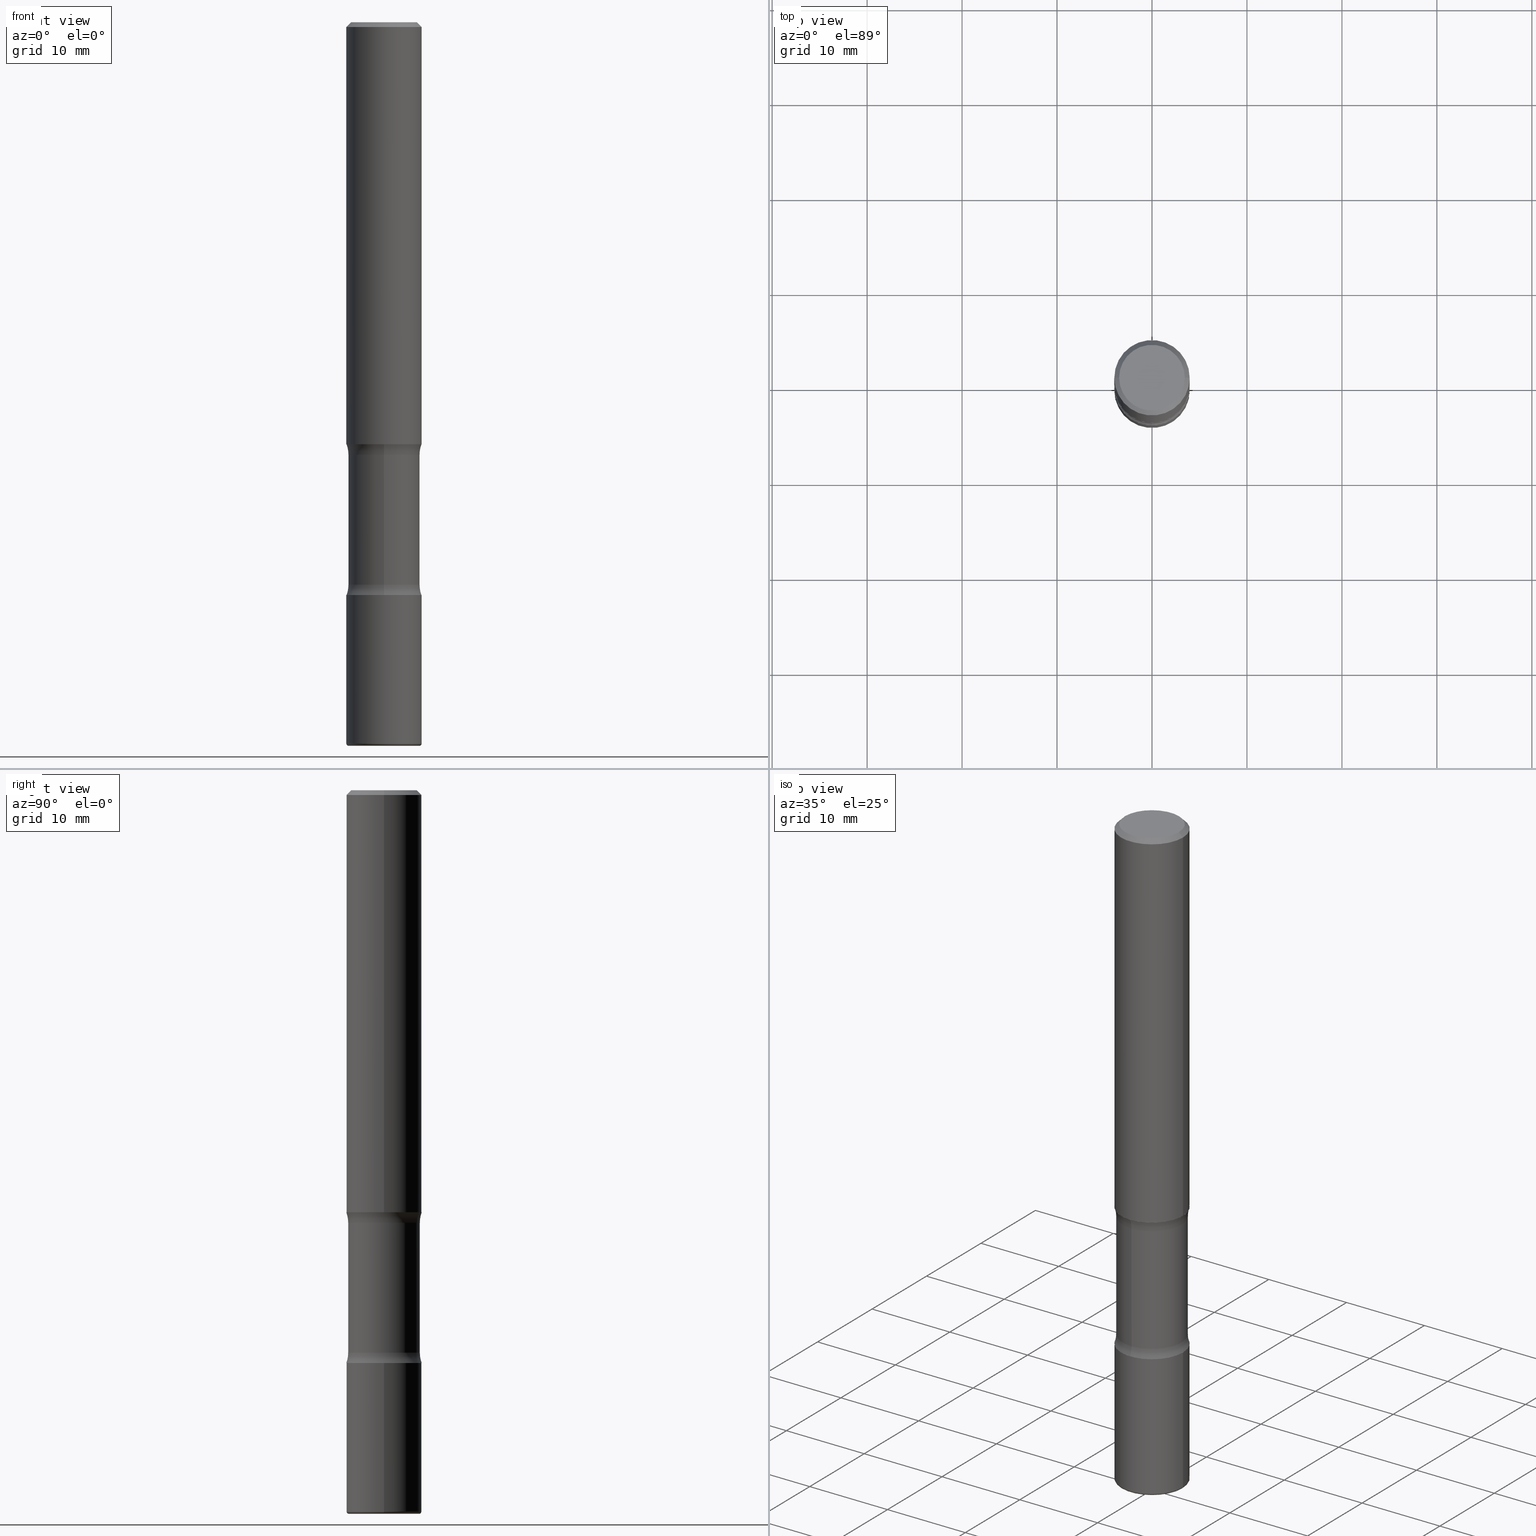
[diagram: canonical four-view strip — front | top / right | iso, engineering-drawing reading convention]
A machine part, canonical four-view strip (front | top / right | iso — engineering-drawing reading convention). The complete STEP part file that produces these views, byte-faithful:
ISO-10303-21;
HEADER;
FILE_DESCRIPTION (( 'STEP AP203' ),
    '1' );
FILE_NAME ('37810.STEP',
    '2024-03-02T00:25:51',
    ( '' ),
    ( '' ),
    'SwSTEP 2.0',
    'SolidWorks 2023',
    '' );
FILE_SCHEMA (( 'CONFIG_CONTROL_DESIGN' ));
ENDSEC;

DATA;
#1 = CALENDAR_DATE ( 2024, 1, 3 ) ;
#2 = EDGE_CURVE ( 'NONE', #271, #45, #130, .T. ) ;
#3 = AXIS2_PLACEMENT_3D ( 'NONE', #188, #324, #115 ) ;
#4 = VECTOR ( 'NONE', #364, 39.37007874015748143 ) ;
#5 = ORIENTED_EDGE ( 'NONE', *, *, #147, .F. ) ;
#6 = MECHANICAL_CONTEXT ( 'NONE', #238, 'mechanical' ) ;
#7 = VERTEX_POINT ( 'NONE', #17 ) ;
#8 = COORDINATED_UNIVERSAL_TIME_OFFSET ( 5, 0, .BEHIND. ) ;
#9 = ORIENTED_EDGE ( 'NONE', *, *, #27, .T. ) ;
#10 = DIRECTION ( 'NONE',  ( 1.000000000000000000, -6.860497997771530774E-15, 4.842174840124134267E-29 ) ) ;
#11 = DIRECTION ( 'NONE',  ( 1.000000000000000000, -6.982962677686265133E-15, 0.000000000000000000 ) ) ;
#12 = CARTESIAN_POINT ( 'NONE',  ( 0.1562500000000000833, -7.201180261363985422E-15, -1.750000000000000444 ) ) ;
#13 = CIRCLE ( 'NONE', #218, 0.1562499999999998612 ) ;
#14 = EDGE_LOOP ( 'NONE', ( #343, #549 ) ) ;
#15 = DIRECTION ( 'NONE',  ( 2.438088387897960049E-29, -3.491481338843145188E-15, -1.000000000000000000 ) ) ;
#16 = DIRECTION ( 'NONE',  ( 2.523926373086038410E-29, -3.379125637513666367E-15, -1.000000000000000000 ) ) ;
#17 = CARTESIAN_POINT ( 'NONE',  ( -0.1362499999999998712, 9.863434782231840290E-16, -6.775751096333132877E-30 ) ) ;
#18 = DATE_AND_TIME ( #138, #195 ) ;
#19 = EDGE_CURVE ( 'NONE', #59, #92, #279, .T. ) ;
#20 = DIRECTION ( 'NONE',  ( 1.000000000000000000, -6.982962677686266711E-15, 4.876176775795936353E-29 ) ) ;
#21 = CARTESIAN_POINT ( 'NONE',  ( 5.807988414689700538E-29, -8.292268179752471696E-15, -2.375000000000000444 ) ) ;
#22 = CLOSED_SHELL ( 'NONE', ( #341, #36, #55, #478, #540, #417 ) ) ;
#23 = CIRCLE ( 'NONE', #280, 0.1484375000000000000 ) ;
#24 = CARTESIAN_POINT ( 'NONE',  ( 5.698202263795362163E-29, -8.145282435205020267E-15, -2.331501840915390478 ) ) ;
#25 = CARTESIAN_POINT ( 'NONE',  ( 1.036533522469098602E-15, 0.1484374999999936995, -1.793498159084610633 ) ) ;
#26 = DIRECTION ( 'NONE',  ( 6.860497997771530774E-15, 1.000000000000000000, 0.000000000000000000 ) ) ;
#27 = EDGE_CURVE ( 'NONE', #251, #39, #267, .T. ) ;
#28 = CARTESIAN_POINT ( 'NONE',  ( -1.875917421265609774E-15, -0.2734375000000063838, -1.793498159084609522 ) ) ;
#29 = TOROIDAL_SURFACE ( 'NONE', #3, 0.2734375000000000000, 0.1250000000000000000 ) ;
#30 = CIRCLE ( 'NONE', #468, 0.1562500000000001665 ) ;
#31 = CARTESIAN_POINT ( 'NONE',  ( -0.1562499999999999722, 1.110223024625156343E-15, -7.685836078523288357E-30 ) ) ;
#32 = TOROIDAL_SURFACE ( 'NONE', #452, 0.2734375000000000555, 0.1250000000000000000 ) ;
#33 = VERTEX_POINT ( 'NONE', #64 ) ;
#34 = DIRECTION ( 'NONE',  ( -2.445468806185136597E-29, 3.491481338843145583E-15, 1.000000000000000000 ) ) ;
#35 = EDGE_LOOP ( 'NONE', ( #228, #424, #434, #518 ) ) ;
#36 = ADVANCED_FACE ( 'NONE', ( #495 ), #79, .T. ) ;
#37 = ORIENTED_EDGE ( 'NONE', *, *, #426, .T. ) ;
#38 = VECTOR ( 'NONE', #16, 39.37007874015748143 ) ;
#39 = VERTEX_POINT ( 'NONE', #25 ) ;
#40 = DIRECTION ( 'NONE',  ( 1.000000000000000000, -6.982962677686266711E-15, 4.876176775795936353E-29 ) ) ;
#41 = EDGE_LOOP ( 'NONE', ( #63, #128, #389, #103 ) ) ;
#42 = MANIFOLD_SOLID_BREP ( 'Body-Move/Copy2[2]', #316 ) ;
#43 = ADVANCED_FACE ( 'NONE', ( #191 ), #197, .F. ) ;
#44 = CC_DESIGN_DATE_AND_TIME_ASSIGNMENT ( #253, #126, ( #557 ) ) ;
#45 = VERTEX_POINT ( 'NONE', #153 ) ;
#46 = MANIFOLD_SOLID_BREP ( 'Body-Move/Copy2[4]', #427 ) ;
#47 = APPLICATION_PROTOCOL_DEFINITION ( 'international standard', 'config_control_design', 1994, #238 ) ;
#48 = AXIS2_PLACEMENT_3D ( 'NONE', #21, #320, #367 ) ;
#49 = CIRCLE ( 'NONE', #270, 0.1562499999999998612 ) ;
#50 = ORIENTED_EDGE ( 'NONE', *, *, #127, .F. ) ;
#51 = CIRCLE ( 'NONE', #142, 0.1462500000000001021 ) ;
#52 = APPROVAL_DATE_TIME ( #18, #508 ) ;
#53 = ORIENTED_EDGE ( 'NONE', *, *, #224, .F. ) ;
#54 = CARTESIAN_POINT ( 'NONE',  ( 5.701615023521807970E-29, -8.140395169034527718E-15, -2.331501840915390478 ) ) ;
#55 = ADVANCED_FACE ( 'NONE', ( #240 ), #229, .T. ) ;
#56 = CARTESIAN_POINT ( 'NONE',  ( 4.279570410823989605E-29, -6.110092342975506249E-15, -1.750000000000000444 ) ) ;
#57 = PERSON_AND_ORGANIZATION_ROLE ( 'design_supplier' ) ;
#58 = PLANE ( 'NONE',  #499 ) ;
#59 = VERTEX_POINT ( 'NONE', #60 ) ;
#60 = CARTESIAN_POINT ( 'NONE',  ( -0.1562500000000000833, -1.979737960251025472E-15, -1.750000000000000444 ) ) ;
#61 = CIRCLE ( 'NONE', #252, 0.01000000000000013205 ) ;
#62 = CARTESIAN_POINT ( 'NONE',  ( -1.875917421265595575E-15, -0.2734375000000081046, -2.331501840915390034 ) ) ;
#63 = ORIENTED_EDGE ( 'NONE', *, *, #244, .F. ) ;
#64 = CARTESIAN_POINT ( 'NONE',  ( 0.1362499999999998712, -1.038262645562517138E-15, 6.957025900226689470E-30 ) ) ;
#65 = ADVANCED_FACE ( 'NONE', ( #408 ), #344, .T. ) ;
#66 = APPROVAL_DATE_TIME ( #455, #546 ) ;
#67 = DIRECTION ( 'NONE',  ( -2.445468806185136597E-29, 3.491481338843145583E-15, 1.000000000000000000 ) ) ;
#68 = DIRECTION ( 'NONE',  ( 1.000000000000000000, -6.982962677686270655E-15, 0.000000000000000000 ) ) ;
#69 = DIRECTION ( 'NONE',  ( 6.982962677686265133E-15, 1.000000000000000000, -3.680805717779217644E-15 ) ) ;
#70 = CARTESIAN_POINT ( 'NONE',  ( 0.000000000000000000, 0.000000000000000000, 0.000000000000000000 ) ) ;
#71 = AXIS2_PLACEMENT_3D ( 'NONE', #371, #361, #311 ) ;
#72 = AXIS2_PLACEMENT_3D ( 'NONE', #376, #278, #161 ) ;
#73 = DIRECTION ( 'NONE',  ( -1.000000000000000000, 7.105427357601027102E-15, 0.000000000000000000 ) ) ;
#74 = DIRECTION ( 'NONE',  ( 1.000000000000000000, -6.982962677686265133E-15, 0.000000000000000000 ) ) ;
#75 = CYLINDRICAL_SURFACE ( 'NONE', #246, 0.1484375000000000000 ) ;
#76 = EDGE_LOOP ( 'NONE', ( #5, #349 ) ) ;
#77 = DIRECTION ( 'NONE',  ( 6.982962677686265133E-15, 1.000000000000000000, -3.680805717779216855E-15 ) ) ;
#78 = PRODUCT ( '37810', '37810', '', ( #6 ) ) ;
#79 = TOROIDAL_SURFACE ( 'NONE', #171, 0.1462500000000000744, 0.01000000000000011470 ) ;
#80 = AXIS2_PLACEMENT_3D ( 'NONE', #410, #369, #102 ) ;
#81 = DIRECTION ( 'NONE',  ( -2.445468806185136597E-29, 3.491481338843145583E-15, 1.000000000000000000 ) ) ;
#82 = EDGE_CURVE ( 'NONE', #92, #59, #368, .T. ) ;
#83 = FACE_OUTER_BOUND ( 'NONE', #222, .T. ) ;
#84 = DIRECTION ( 'NONE',  ( 6.982962677686265922E-15, 1.000000000000000000, -3.379125637513666761E-15 ) ) ;
#85 = DIRECTION ( 'NONE',  ( 2.438088387897960049E-29, -3.491481338843145188E-15, -1.000000000000000000 ) ) ;
#86 = CIRCLE ( 'NONE', #400, 0.1250000000000000000 ) ;
#87 = EDGE_CURVE ( 'NONE', #300, #261, #437, .T. ) ;
#88 = CC_DESIGN_APPROVAL ( #508, ( #515 ) ) ;
#89 = CC_DESIGN_DATE_AND_TIME_ASSIGNMENT ( #521, #491, ( #515 ) ) ;
#90 = ORIENTED_EDGE ( 'NONE', *, *, #163, .F. ) ;
#91 =( NAMED_UNIT ( * ) PLANE_ANGLE_UNIT ( ) SI_UNIT ( $, .RADIAN. ) );
#92 = VERTEX_POINT ( 'NONE', #12 ) ;
#93 = DATE_AND_TIME ( #1, #500 ) ;
#94 = ORIENTED_EDGE ( 'NONE', *, *, #158, .T. ) ;
#95 = PERSON_AND_ORGANIZATION ( #432, #538 ) ;
#96 = CIRCLE ( 'NONE', #71, 0.1562500000000001110 ) ;
#97 = CONICAL_SURFACE ( 'NONE', #80, 0.1562499999999998612, 0.7853981633974480570 ) ;
#98 = VERTEX_POINT ( 'NONE', #157 ) ;
#99 = CC_DESIGN_PERSON_AND_ORGANIZATION_ASSIGNMENT ( #338, #214, ( #78 ) ) ;
#100 = DIRECTION ( 'NONE',  ( -2.445468806185136597E-29, 3.491481338843145583E-15, 1.000000000000000000 ) ) ;
#101 = ORIENTED_EDGE ( 'NONE', *, *, #236, .T. ) ;
#102 = DIRECTION ( 'NONE',  ( -1.000000000000000000, 6.982962677686266711E-15, 0.000000000000000000 ) ) ;
#103 = ORIENTED_EDGE ( 'NONE', *, *, #175, .T. ) ;
#104 = DIRECTION ( 'NONE',  ( -6.982962677686266711E-15, -1.000000000000000000, 3.491481338843145583E-15 ) ) ;
#105 = FACE_OUTER_BOUND ( 'NONE', #41, .T. ) ;
#106 = ADVANCED_FACE ( 'NONE', ( #457 ), #29, .F. ) ;
#107 = ORIENTED_EDGE ( 'NONE', *, *, #158, .F. ) ;
#108 = DIRECTION ( 'NONE',  ( 1.000000000000000000, -6.982962677686269077E-15, 0.000000000000000000 ) ) ;
#109 = LOCAL_TIME ( 19, 25, 51.00000000000000000, #257 ) ;
#110 = CYLINDRICAL_SURFACE ( 'NONE', #123, 0.1562500000000001388 ) ;
#111 = DIRECTION ( 'NONE',  ( -1.000000000000000000, 6.982962677686266711E-15, 0.000000000000000000 ) ) ;
#112 = CARTESIAN_POINT ( 'NONE',  ( 0.1562499999999998612, -1.141782438928663922E-15, -0.02000000000000000042 ) ) ;
#113 = DIRECTION ( 'NONE',  ( 6.982962677686266711E-15, 1.000000000000000000, -3.496765431890253370E-15 ) ) ;
#114 = PLANE ( 'NONE',  #72 ) ;
#115 = DIRECTION ( 'NONE',  ( 6.982962677686265922E-15, 1.000000000000000000, -3.379125637513666761E-15 ) ) ;
#116 = AXIS2_PLACEMENT_3D ( 'NONE', #332, #329, #502 ) ;
#117 = APPROVAL_PERSON_ORGANIZATION ( #430, #546, #442 ) ;
#118 = EDGE_CURVE ( 'NONE', #169, #231, #96, .T. ) ;
#119 = DIRECTION ( 'NONE',  ( -2.445468806185136877E-29, 3.491481338843145188E-15, 1.000000000000000000 ) ) ;
#120 = CYLINDRICAL_SURFACE ( 'NONE', #116, 0.1562499999999999722 ) ;
#121 = CARTESIAN_POINT ( 'NONE',  ( 0.000000000000000000, 0.000000000000000000, 0.000000000000000000 ) ) ;
#122 = EDGE_CURVE ( 'NONE', #271, #261, #529, .T. ) ;
#123 = AXIS2_PLACEMENT_3D ( 'NONE', #234, #67, #20 ) ;
#124 = DIRECTION ( 'NONE',  ( 1.000000000000000000, -6.982962677686266711E-15, 0.000000000000000000 ) ) ;
#125 = PLANE ( 'NONE',  #348 ) ;
#126 = DATE_TIME_ROLE ( 'creation_date' ) ;
#127 = EDGE_CURVE ( 'NONE', #45, #300, #281, .T. ) ;
#128 = ORIENTED_EDGE ( 'NONE', *, *, #185, .F. ) ;
#129 = PLANE ( 'NONE',  #328 ) ;
#130 = CIRCLE ( 'NONE', #449, 0.1562500000000001388 ) ;
#131 = AXIS2_PLACEMENT_3D ( 'NONE', #494, #317, #69 ) ;
#132 = CC_DESIGN_APPROVAL ( #546, ( #289 ) ) ;
#133 = ORIENTED_EDGE ( 'NONE', *, *, #250, .F. ) ;
#134 = FACE_OUTER_BOUND ( 'NONE', #35, .T. ) ;
#135 = ORIENTED_EDGE ( 'NONE', *, *, #127, .T. ) ;
#136 = ORIENTED_EDGE ( 'NONE', *, *, #284, .F. ) ;
#137 = EDGE_CURVE ( 'NONE', #363, #98, #318, .T. ) ;
#138 = CALENDAR_DATE ( 2024, 1, 3 ) ;
#139 = DIRECTION ( 'NONE',  ( 2.523926373086038410E-29, -3.379125637513666367E-15, -1.000000000000000000 ) ) ;
#140 = AXIS2_PLACEMENT_3D ( 'NONE', #199, #81, #418 ) ;
#141 = ORIENTED_EDGE ( 'NONE', *, *, #299, .T. ) ;
#142 = AXIS2_PLACEMENT_3D ( 'NONE', #247, #469, #124 ) ;
#143 = COORDINATED_UNIVERSAL_TIME_OFFSET ( 5, 0, .BEHIND. ) ;
#144 = CARTESIAN_POINT ( 'NONE',  ( -1.018355171544137761E-15, -0.1484375000000104083, -2.999999999999999112 ) ) ;
#145 = ORIENTED_EDGE ( 'NONE', *, *, #440, .F. ) ;
#146 = DIRECTION ( 'NONE',  ( -2.445468806185136597E-29, 3.491481338843145583E-15, 1.000000000000000000 ) ) ;
#147 = EDGE_CURVE ( 'NONE', #532, #297, #30, .T. ) ;
#148 = DIRECTION ( 'NONE',  ( 6.982962677686266711E-15, 1.000000000000000000, -3.496765431890253370E-15 ) ) ;
#149 = EDGE_LOOP ( 'NONE', ( #255, #448, #394, #441 ) ) ;
#150 = DIRECTION ( 'NONE',  ( -2.445468806185136597E-29, 3.491481338843145583E-15, 1.000000000000000000 ) ) ;
#151 = CARTESIAN_POINT ( 'NONE',  ( 4.279570410823989605E-29, -6.110092342975506249E-15, -1.750000000000000444 ) ) ;
#152 = CIRCLE ( 'NONE', #548, 0.1250000000000000000 ) ;
#153 = CARTESIAN_POINT ( 'NONE',  ( 0.1562500000000001665, -1.153061712152948940E-14, -2.990000000000000657 ) ) ;
#154 = DIRECTION ( 'NONE',  ( -6.982962677686265922E-15, -1.000000000000000000, 0.000000000000000000 ) ) ;
#155 = CARTESIAN_POINT ( 'NONE',  ( 7.336406418555412032E-29, -1.047444401652943951E-14, -3.000000000000000888 ) ) ;
#156 = FACE_OUTER_BOUND ( 'NONE', #211, .T. ) ;
#157 = CARTESIAN_POINT ( 'NONE',  ( -0.1462500000000001021, -9.382290721998072185E-15, -3.000000000000000888 ) ) ;
#158 = EDGE_CURVE ( 'NONE', #45, #271, #182, .T. ) ;
#159 = DIRECTION ( 'NONE',  ( 2.523926373086038410E-29, -3.379125637513666367E-15, -1.000000000000000000 ) ) ;
#160 = APPROVAL_PERSON_ORGANIZATION ( #435, #460, #385 ) ;
#161 = DIRECTION ( 'NONE',  ( -1.000000000000000000, 6.982962677686265922E-15, -4.876176775795935793E-29 ) ) ;
#162 = DIRECTION ( 'NONE',  ( 2.523926373086038410E-29, -3.379125637513666367E-15, -1.000000000000000000 ) ) ;
#163 = EDGE_CURVE ( 'NONE', #363, #45, #345, .T. ) ;
#164 = ORIENTED_EDGE ( 'NONE', *, *, #299, .F. ) ;
#165 = FACE_OUTER_BOUND ( 'NONE', #397, .T. ) ;
#166 = AXIS2_PLACEMENT_3D ( 'NONE', #380, #196, #552 ) ;
#167 =( LENGTH_UNIT ( ) NAMED_UNIT ( * ) SI_UNIT ( $, .METRE. ) );
#168 = ORIENTED_EDGE ( 'NONE', *, *, #137, .T. ) ;
#169 = VERTEX_POINT ( 'NONE', #489 ) ;
#170 = PERSON_AND_ORGANIZATION_ROLE ( 'creator' ) ;
#171 = AXIS2_PLACEMENT_3D ( 'NONE', #232, #415, #411 ) ;
#172 = VECTOR ( 'NONE', #264, 39.37007874015748143 ) ;
#173 = ORIENTED_EDGE ( 'NONE', *, *, #2, .F. ) ;
#174 = APPROVAL_DATE_TIME ( #93, #460 ) ;
#175 = EDGE_CURVE ( 'NONE', #355, #488, #49, .T. ) ;
#176 = ORIENTED_EDGE ( 'NONE', *, *, #325, .F. ) ;
#177 = PERSON_AND_ORGANIZATION ( #432, #538 ) ;
#178 = ORIENTED_EDGE ( 'NONE', *, *, #382, .T. ) ;
#179 = PERSON_AND_ORGANIZATION_ROLE ( 'classification_officer' ) ;
#180 = CARTESIAN_POINT ( 'NONE',  ( 1.036533522469128973E-15, 0.1484374999999896194, -3.000000000000000444 ) ) ;
#181 = AXIS2_PLACEMENT_3D ( 'NONE', #493, #194, #111 ) ;
#182 = CIRCLE ( 'NONE', #392, 0.1562500000000001388 ) ;
#183 = ORIENTED_EDGE ( 'NONE', *, *, #147, .T. ) ;
#184 = CARTESIAN_POINT ( 'NONE',  ( 5.807988414689700538E-29, -8.292268179752471696E-15, -2.375000000000000444 ) ) ;
#185 = EDGE_CURVE ( 'NONE', #7, #33, #420, .T. ) ;
#186 = CARTESIAN_POINT ( 'NONE',  ( 4.890937612370273159E-31, -6.982962677686291609E-17, -0.02000000000000000042 ) ) ;
#187 = CARTESIAN_POINT ( 'NONE',  ( 7.311951730493559366E-29, -1.043952920314100786E-14, -2.990000000000000657 ) ) ;
#188 = CARTESIAN_POINT ( 'NONE',  ( 5.701615023521807970E-29, -8.140395169034527718E-15, -2.331501840915390478 ) ) ;
#189 = DIRECTION ( 'NONE',  ( -2.445468806185136597E-29, 3.491481338843145583E-15, 1.000000000000000000 ) ) ;
#190 = ORIENTED_EDGE ( 'NONE', *, *, #118, .F. ) ;
#191 = FACE_OUTER_BOUND ( 'NONE', #14, .T. ) ;
#192 = CARTESIAN_POINT ( 'NONE',  ( -0.1562499999999998612, 1.021258291611615284E-15, -0.02000000000000000042 ) ) ;
#193 = AXIS2_PLACEMENT_3D ( 'NONE', #70, #100, #308 ) ;
#194 = DIRECTION ( 'NONE',  ( 2.445468806185136597E-29, -3.491481338843145583E-15, -1.000000000000000000 ) ) ;
#195 = LOCAL_TIME ( 19, 25, 51.00000000000000000, #526 ) ;
#196 = DIRECTION ( 'NONE',  ( 2.523926373086038410E-29, -3.379125637513666367E-15, -1.000000000000000000 ) ) ;
#197 = PLANE ( 'NONE',  #48 ) ;
#198 = DIRECTION ( 'NONE',  ( -2.445468806185136597E-29, 3.491481338843145583E-15, 1.000000000000000000 ) ) ;
#199 = CARTESIAN_POINT ( 'NONE',  ( 5.807988414689700538E-29, -8.292268179752471696E-15, -2.375000000000000444 ) ) ;
#200 = AXIS2_PLACEMENT_3D ( 'NONE', #56, #399, #11 ) ;
#201 = AXIS2_PLACEMENT_3D ( 'NONE', #121, #198, #207 ) ;
#202 = ADVANCED_FACE ( 'NONE', ( #105 ), #97, .T. ) ;
#203 = CC_DESIGN_APPROVAL ( #460, ( #557 ) ) ;
#204 = PRODUCT_RELATED_PRODUCT_CATEGORY ( 'detail', '', ( #78 ) ) ;
#205 = FACE_OUTER_BOUND ( 'NONE', #511, .T. ) ;
#206 = ORIENTED_EDGE ( 'NONE', *, *, #405, .F. ) ;
#207 = DIRECTION ( 'NONE',  ( 1.000000000000000000, -6.982962677686266711E-15, 4.876176775795936353E-29 ) ) ;
#208 = DIRECTION ( 'NONE',  ( -1.000000000000000000, 6.982962677686265922E-15, -4.876176775795935793E-29 ) ) ;
#209 = VECTOR ( 'NONE', #230, 39.37007874015748143 ) ;
#210 = EDGE_CURVE ( 'NONE', #39, #532, #514, .T. ) ;
#211 = EDGE_LOOP ( 'NONE', ( #520, #386, #391, #133 ) ) ;
#212 =( NAMED_UNIT ( * ) SI_UNIT ( $, .STERADIAN. ) SOLID_ANGLE_UNIT ( ) );
#213 = ORIENTED_EDGE ( 'NONE', *, *, #185, .T. ) ;
#214 = PERSON_AND_ORGANIZATION_ROLE ( 'design_owner' ) ;
#215 = ORIENTED_EDGE ( 'NONE', *, *, #275, .T. ) ;
#216 = FACE_OUTER_BOUND ( 'NONE', #528, .T. ) ;
#217 = ADVANCED_FACE ( 'NONE', ( #401 ), #58, .F. ) ;
#218 = AXIS2_PLACEMENT_3D ( 'NONE', #186, #189, #443 ) ;
#219 = CC_DESIGN_SECURITY_CLASSIFICATION ( #515, ( #289 ) ) ;
#220 = ORIENTED_EDGE ( 'NONE', *, *, #365, .F. ) ;
#221 = PERSON_AND_ORGANIZATION ( #432, #538 ) ;
#222 = EDGE_LOOP ( 'NONE', ( #213, #178 ) ) ;
#223 = DIRECTION ( 'NONE',  ( 6.982962677686265922E-15, 1.000000000000000000, -3.379125637513666761E-15 ) ) ;
#224 = EDGE_CURVE ( 'NONE', #92, #488, #539, .T. ) ;
#225 = ORIENTED_EDGE ( 'NONE', *, *, #382, .F. ) ;
#226 = CARTESIAN_POINT ( 'NONE',  ( -1.045153991847964360E-15, -0.1484375000000063560, -1.793498159084609522 ) ) ;
#227 = AXIS2_PLACEMENT_3D ( 'NONE', #486, #104, #277 ) ;
#228 = ORIENTED_EDGE ( 'NONE', *, *, #27, .F. ) ;
#229 = PLANE ( 'NONE',  #335 ) ;
#230 = DIRECTION ( 'NONE',  ( 0.7071067811865473507, -7.319954787623256045E-15, -0.7071067811865476838 ) ) ;
#231 = VERTEX_POINT ( 'NONE', #446 ) ;
#232 = CARTESIAN_POINT ( 'NONE',  ( 7.311951730493559366E-29, -1.043952920314100786E-14, -2.990000000000000657 ) ) ;
#233 = APPROVAL_ROLE ( '' ) ;
#234 = CARTESIAN_POINT ( 'NONE',  ( 0.000000000000000000, 0.000000000000000000, 0.000000000000000000 ) ) ;
#235 = CARTESIAN_POINT ( 'NONE',  ( -0.1562500000000001388, 1.110223024625157526E-15, -7.685836078523296765E-30 ) ) ;
#236 = EDGE_CURVE ( 'NONE', #378, #258, #555, .T. ) ;
#237 = CARTESIAN_POINT ( 'NONE',  ( -0.1562500000000001665, -9.329306178515849742E-15, -2.990000000000000657 ) ) ;
#238 = APPLICATION_CONTEXT ( 'configuration controlled 3d designs of mechanical parts and assemblies' ) ;
#239 = CIRCLE ( 'NONE', #305, 0.1484375000000000278 ) ;
#240 = FACE_OUTER_BOUND ( 'NONE', #485, .T. ) ;
#241 = CARTESIAN_POINT ( 'NONE',  ( 1.909403857179895154E-15, 0.2734374999999918399, -2.331501840915391366 ) ) ;
#242 = DIRECTION ( 'NONE',  ( -2.445468806185136597E-29, 3.491481338843145583E-15, 1.000000000000000000 ) ) ;
#243 = FACE_OUTER_BOUND ( 'NONE', #351, .T. ) ;
#244 = EDGE_CURVE ( 'NONE', #33, #488, #262, .T. ) ;
#245 = LINE ( 'NONE', #31, #282 ) ;
#246 = AXIS2_PLACEMENT_3D ( 'NONE', #372, #162, #326 ) ;
#247 = CARTESIAN_POINT ( 'NONE',  ( 7.336406418555412032E-29, -1.047444401652943951E-14, -3.000000000000000888 ) ) ;
#248 = ORIENTED_EDGE ( 'NONE', *, *, #137, .F. ) ;
#249 = CYLINDRICAL_SURFACE ( 'NONE', #166, 0.1484375000000000000 ) ;
#250 = EDGE_CURVE ( 'NONE', #39, #378, #273, .T. ) ;
#251 = VERTEX_POINT ( 'NONE', #226 ) ;
#252 = AXIS2_PLACEMENT_3D ( 'NONE', #323, #330, #73 ) ;
#253 = DATE_AND_TIME ( #350, #109 ) ;
#254 = EDGE_LOOP ( 'NONE', ( #470, #477 ) ) ;
#255 = ORIENTED_EDGE ( 'NONE', *, *, #472, .F. ) ;
#256 = ADVANCED_FACE ( 'NONE', ( #362 ), #474, .F. ) ;
#257 = COORDINATED_UNIVERSAL_TIME_OFFSET ( 5, 0, .BEHIND. ) ;
#258 = VERTEX_POINT ( 'NONE', #451 ) ;
#259 = CARTESIAN_POINT ( 'NONE',  ( 4.338252820539708503E-29, -6.330261553535058631E-15, -1.793498159084610410 ) ) ;
#260 = VECTOR ( 'NONE', #139, 39.37007874015748143 ) ;
#261 = VERTEX_POINT ( 'NONE', #458 ) ;
#262 = LINE ( 'NONE', #112, #209 ) ;
#263 = ORIENTED_EDGE ( 'NONE', *, *, #405, .T. ) ;
#264 = DIRECTION ( 'NONE',  ( -2.445468806185136877E-29, 3.491481338843145188E-15, 1.000000000000000000 ) ) ;
#265 = EDGE_LOOP ( 'NONE', ( #225, #513, #141, #560 ) ) ;
#266 = CARTESIAN_POINT ( 'NONE',  ( 7.311951730493559366E-29, -1.043952920314100786E-14, -2.990000000000000657 ) ) ;
#267 = CIRCLE ( 'NONE', #554, 0.1484375000000000278 ) ;
#268 = CARTESIAN_POINT ( 'NONE',  ( 4.338252820539708503E-29, -6.330261553535058631E-15, -1.793498159084610410 ) ) ;
#269 = VECTOR ( 'NONE', #544, 39.37007874015748143 ) ;
#270 = AXIS2_PLACEMENT_3D ( 'NONE', #272, #454, #459 ) ;
#271 = VERTEX_POINT ( 'NONE', #237 ) ;
#272 = CARTESIAN_POINT ( 'NONE',  ( 4.890937612370273159E-31, -6.982962677686291609E-17, -0.02000000000000000042 ) ) ;
#273 = LINE ( 'NONE', #180, #260 ) ;
#274 = DIRECTION ( 'NONE',  ( -2.445468806185136597E-29, 3.491481338843145583E-15, 1.000000000000000000 ) ) ;
#275 = EDGE_CURVE ( 'NONE', #258, #378, #23, .T. ) ;
#276 = DIRECTION ( 'NONE',  ( 2.523926373086038410E-29, -3.379125637513666367E-15, -1.000000000000000000 ) ) ;
#277 = DIRECTION ( 'NONE',  ( 1.000000000000000000, -6.982962677686239889E-15, 0.000000000000000000 ) ) ;
#278 = DIRECTION ( 'NONE',  ( 2.438088387897960049E-29, -3.491481338843145188E-15, -1.000000000000000000 ) ) ;
#279 = CIRCLE ( 'NONE', #200, 0.1562500000000000833 ) ;
#280 = AXIS2_PLACEMENT_3D ( 'NONE', #24, #527, #412 ) ;
#281 = LINE ( 'NONE', #541, #4 ) ;
#282 = VECTOR ( 'NONE', #119, 39.37007874015748143 ) ;
#283 = DIRECTION ( 'NONE',  ( -2.445468806185136597E-29, 3.491481338843145583E-15, 1.000000000000000000 ) ) ;
#284 = EDGE_CURVE ( 'NONE', #231, #258, #152, .T. ) ;
#285 = FACE_OUTER_BOUND ( 'NONE', #292, .T. ) ;
#286 = LINE ( 'NONE', #374, #269 ) ;
#287 = ORIENTED_EDGE ( 'NONE', *, *, #122, .T. ) ;
#288 = AXIS2_PLACEMENT_3D ( 'NONE', #366, #456, #148 ) ;
#289 = PRODUCT_DEFINITION_FORMATION_WITH_SPECIFIED_SOURCE ( 'ANY', '', #78, .NOT_KNOWN. ) ;
#290 = CC_DESIGN_PERSON_AND_ORGANIZATION_ASSIGNMENT ( #221, #179, ( #515 ) ) ;
#291 = CARTESIAN_POINT ( 'NONE',  ( 0.1562499999999998612, -1.141782438928663922E-15, -0.02000000000000000042 ) ) ;
#292 = EDGE_LOOP ( 'NONE', ( #479, #403, #164, #53 ) ) ;
#293 = ADVANCED_FACE ( 'NONE', ( #306 ), #524, .F. ) ;
#294 = LENGTH_MEASURE_WITH_UNIT ( LENGTH_MEASURE( 0.02539999999999999897 ), #167 );
#295 = ORIENTED_EDGE ( 'NONE', *, *, #250, .T. ) ;
#296 = APPROVAL_STATUS ( 'not_yet_approved' ) ;
#297 = VERTEX_POINT ( 'NONE', #487 ) ;
#298 = CIRCLE ( 'NONE', #336, 0.1562500000000001110 ) ;
#299 = EDGE_CURVE ( 'NONE', #488, #355, #13, .T. ) ;
#300 = VERTEX_POINT ( 'NONE', #398 ) ;
#301 = FACE_OUTER_BOUND ( 'NONE', #76, .T. ) ;
#302 = ORIENTED_EDGE ( 'NONE', *, *, #87, .T. ) ;
#303 = ORIENTED_EDGE ( 'NONE', *, *, #284, .T. ) ;
#304 = SHAPE_DEFINITION_REPRESENTATION ( #333, #531 ) ;
#305 = AXIS2_PLACEMENT_3D ( 'NONE', #381, #498, #77 ) ;
#306 = FACE_OUTER_BOUND ( 'NONE', #307, .T. ) ;
#307 = EDGE_LOOP ( 'NONE', ( #482, #303, #215, #220 ) ) ;
#308 = DIRECTION ( 'NONE',  ( 1.000000000000000000, -6.982962677686266711E-15, 4.876176775795936353E-29 ) ) ;
#309 = DESIGN_CONTEXT ( 'detailed design', #342, 'design' ) ;
#310 = EDGE_LOOP ( 'NONE', ( #136, #190, #453, #101 ) ) ;
#311 = DIRECTION ( 'NONE',  ( 6.982962677686265922E-15, 1.000000000000000000, -3.496765431890254553E-15 ) ) ;
#312 = DIRECTION ( 'NONE',  ( 6.982962677686265922E-15, 1.000000000000000000, -3.379125637513666761E-15 ) ) ;
#313 = EDGE_LOOP ( 'NONE', ( #145, #431, #331, #183 ) ) ;
#314 = DIRECTION ( 'NONE',  ( 2.523926373086038410E-29, -3.379125637513666367E-15, -1.000000000000000000 ) ) ;
#315 = SECURITY_CLASSIFICATION_LEVEL ( 'unclassified' ) ;
#316 = CLOSED_SHELL ( 'NONE', ( #447, #65, #202, #509, #217, #422 ) ) ;
#317 = DIRECTION ( 'NONE',  ( 2.523926373086038410E-29, -3.379125637513666367E-15, -1.000000000000000000 ) ) ;
#318 = CIRCLE ( 'NONE', #327, 0.1462500000000001021 ) ;
#319 = UNCERTAINTY_MEASURE_WITH_UNIT (LENGTH_MEASURE( 1.000000000000000082E-05 ), #516, 'distance_accuracy_value', 'NONE');
#320 = DIRECTION ( 'NONE',  ( -2.523926373086038130E-29, 3.379125637513666367E-15, 1.000000000000000000 ) ) ;
#321 = DIRECTION ( 'NONE',  ( -2.438088387897960049E-29, 3.491481338843145188E-15, 1.000000000000000000 ) ) ;
#322 = DIRECTION ( 'NONE',  ( 1.000000000000000000, -6.982962677686266711E-15, 0.000000000000000000 ) ) ;
#323 = CARTESIAN_POINT ( 'NONE',  ( -0.1462500000000000744, -9.400360452091861401E-15, -2.990000000000000657 ) ) ;
#324 = DIRECTION ( 'NONE',  ( 2.523926373086038410E-29, -3.379125637513666367E-15, -1.000000000000000000 ) ) ;
#325 = EDGE_CURVE ( 'NONE', #251, #258, #359, .T. ) ;
#326 = DIRECTION ( 'NONE',  ( 6.982962677686266711E-15, 1.000000000000000000, -3.680805717779217644E-15 ) ) ;
#327 = AXIS2_PLACEMENT_3D ( 'NONE', #155, #150, #322 ) ;
#328 = AXIS2_PLACEMENT_3D ( 'NONE', #347, #383, #471 ) ;
#329 = DIRECTION ( 'NONE',  ( -2.445468806185136597E-29, 3.491481338843145583E-15, 1.000000000000000000 ) ) ;
#330 = DIRECTION ( 'NONE',  ( 7.105427357601001859E-15, 1.000000000000000000, -3.491481338843145583E-15 ) ) ;
#331 = ORIENTED_EDGE ( 'NONE', *, *, #210, .T. ) ;
#332 = CARTESIAN_POINT ( 'NONE',  ( 0.000000000000000000, 0.000000000000000000, 0.000000000000000000 ) ) ;
#333 = PRODUCT_DEFINITION_SHAPE ( 'NONE', 'NONE',  #557 ) ;
#334 = EDGE_CURVE ( 'NONE', #297, #532, #358, .T. ) ;
#335 = AXIS2_PLACEMENT_3D ( 'NONE', #535, #15, #373 ) ;
#336 = AXIS2_PLACEMENT_3D ( 'NONE', #496, #159, #504 ) ;
#337 = COORDINATED_UNIVERSAL_TIME_OFFSET ( 5, 0, .BEHIND. ) ;
#338 = PERSON_AND_ORGANIZATION ( #432, #538 ) ;
#339 = ORIENTED_EDGE ( 'NONE', *, *, #426, .F. ) ;
#340 = CARTESIAN_POINT ( 'NONE',  ( 9.514286648347529716E-16, 0.1362499999999998712, -4.757143324173781621E-16 ) ) ;
#341 = ADVANCED_FACE ( 'NONE', ( #492 ), #110, .T. ) ;
#342 = APPLICATION_CONTEXT ( 'configuration controlled 3d designs of mechanical parts and assemblies' ) ;
#343 = ORIENTED_EDGE ( 'NONE', *, *, #118, .T. ) ;
#344 = CONICAL_SURFACE ( 'NONE', #181, 0.1562499999999998612, 0.7853981633974480570 ) ;
#345 = CIRCLE ( 'NONE', #227, 0.01000000000000013205 ) ;
#346 = APPROVAL_PERSON_ORGANIZATION ( #177, #508, #233 ) ;
#347 = CARTESIAN_POINT ( 'NONE',  ( 4.279570410823989605E-29, -6.110092342975506249E-15, -1.750000000000000444 ) ) ;
#348 = AXIS2_PLACEMENT_3D ( 'NONE', #340, #85, #208 ) ;
#349 = ORIENTED_EDGE ( 'NONE', *, *, #334, .F. ) ;
#350 = CALENDAR_DATE ( 2024, 1, 3 ) ;
#351 = EDGE_LOOP ( 'NONE', ( #302, #263 ) ) ;
#352 = CC_DESIGN_PERSON_AND_ORGANIZATION_ASSIGNMENT ( #439, #57, ( #289 ) ) ;
#353 = APPROVAL_STATUS ( 'not_yet_approved' ) ;
#354 = DIRECTION ( 'NONE',  ( -1.000000000000000000, 6.982962677686265922E-15, -4.883557194083112340E-29 ) ) ;
#355 = VERTEX_POINT ( 'NONE', #192 ) ;
#356 = EDGE_CURVE ( 'NONE', #231, #169, #298, .T. ) ;
#357 = PERSON_AND_ORGANIZATION_ROLE ( 'creator' ) ;
#358 = CIRCLE ( 'NONE', #288, 0.1562500000000001665 ) ;
#359 = LINE ( 'NONE', #144, #38 ) ;
#360 = CARTESIAN_POINT ( 'NONE',  ( 4.340320582405264943E-29, -6.327300400853882778E-15, -1.793498159084609966 ) ) ;
#361 = DIRECTION ( 'NONE',  ( 2.523926373086038410E-29, -3.379125637513666367E-15, -1.000000000000000000 ) ) ;
#362 = FACE_OUTER_BOUND ( 'NONE', #313, .T. ) ;
#363 = VERTEX_POINT ( 'NONE', #419 ) ;
#364 = DIRECTION ( 'NONE',  ( -2.445468806185136877E-29, 3.491481338843145188E-15, 1.000000000000000000 ) ) ;
#365 = EDGE_CURVE ( 'NONE', #169, #378, #413, .T. ) ;
#366 = CARTESIAN_POINT ( 'NONE',  ( 4.230534431510926007E-29, -6.180314656306430561E-15, -1.750000000000000444 ) ) ;
#367 = DIRECTION ( 'NONE',  ( -6.982962677686265922E-15, -1.000000000000000000, 3.379125637513666367E-15 ) ) ;
#368 = CIRCLE ( 'NONE', #490, 0.1562500000000000833 ) ;
#369 = DIRECTION ( 'NONE',  ( 2.445468806185136597E-29, -3.491481338843145583E-15, -1.000000000000000000 ) ) ;
#370 = LOCAL_TIME ( 19, 25, 51.00000000000000000, #8 ) ;
#371 = CARTESIAN_POINT ( 'NONE',  ( 5.807988414689700538E-29, -8.292268179752471696E-15, -2.375000000000000444 ) ) ;
#372 = CARTESIAN_POINT ( 'NONE',  ( 7.385442397868472267E-29, -1.040422170319851125E-14, -2.999999999999999556 ) ) ;
#373 = DIRECTION ( 'NONE',  ( -1.000000000000000000, 6.982962677686265922E-15, -4.876176775795935793E-29 ) ) ;
#374 = CARTESIAN_POINT ( 'NONE',  ( -0.1562499999999998612, 1.021258291611615284E-15, -0.02000000000000000042 ) ) ;
#375 = ADVANCED_FACE ( 'NONE', ( #156 ), #249, .T. ) ;
#376 = CARTESIAN_POINT ( 'NONE',  ( 5.807988414689700538E-29, -8.292268179752471696E-15, -2.375000000000000444 ) ) ;
#377 = AXIS2_PLACEMENT_3D ( 'NONE', #268, #276, #312 ) ;
#378 = VERTEX_POINT ( 'NONE', #550 ) ;
#379 = AXIS2_PLACEMENT_3D ( 'NONE', #423, #34, #506 ) ;
#380 = CARTESIAN_POINT ( 'NONE',  ( 7.385442397868472267E-29, -1.040422170319851125E-14, -2.999999999999999556 ) ) ;
#381 = CARTESIAN_POINT ( 'NONE',  ( 4.340320582405264943E-29, -6.327300400853882778E-15, -1.793498159084609966 ) ) ;
#382 = EDGE_CURVE ( 'NONE', #33, #7, #480, .T. ) ;
#383 = DIRECTION ( 'NONE',  ( 2.523926373086038130E-29, -3.379125637513666367E-15, -1.000000000000000000 ) ) ;
#384 =( GEOMETRIC_REPRESENTATION_CONTEXT ( 3 ) GLOBAL_UNCERTAINTY_ASSIGNED_CONTEXT ( ( #319 ) ) GLOBAL_UNIT_ASSIGNED_CONTEXT ( ( #516, #91, #212 ) ) REPRESENTATION_CONTEXT ( 'NONE', 'WORKASPACE' ) );
#385 = APPROVAL_ROLE ( '' ) ;
#386 = ORIENTED_EDGE ( 'NONE', *, *, #325, .T. ) ;
#387 = ADVANCED_FACE ( 'NONE', ( #165 ), #75, .T. ) ;
#388 = DIRECTION ( 'NONE',  ( 1.000000000000000000, 0.000000000000000000, 0.000000000000000000 ) ) ;
#389 = ORIENTED_EDGE ( 'NONE', *, *, #466, .T. ) ;
#390 = APPLICATION_PROTOCOL_DEFINITION ( 'international standard', 'config_control_design', 1994, #342 ) ;
#391 = ORIENTED_EDGE ( 'NONE', *, *, #236, .F. ) ;
#392 = AXIS2_PLACEMENT_3D ( 'NONE', #266, #146, #108 ) ;
#393 = DIRECTION ( 'NONE',  ( 0.000000000000000000, 0.000000000000000000, 1.000000000000000000 ) ) ;
#394 = ORIENTED_EDGE ( 'NONE', *, *, #224, .T. ) ;
#395 = CALENDAR_DATE ( 2024, 1, 3 ) ;
#396 = EDGE_CURVE ( 'NONE', #39, #251, #239, .T. ) ;
#397 = EDGE_LOOP ( 'NONE', ( #176, #9, #295, #558 ) ) ;
#398 = CARTESIAN_POINT ( 'NONE',  ( 0.1562500000000001110, -9.383356098140953236E-15, -2.375000000000000444 ) ) ;
#399 = DIRECTION ( 'NONE',  ( -2.445468806185136597E-29, 3.491481338843145583E-15, 1.000000000000000000 ) ) ;
#400 = AXIS2_PLACEMENT_3D ( 'NONE', #28, #461, #26 ) ;
#401 = FACE_OUTER_BOUND ( 'NONE', #254, .T. ) ;
#402 = AXIS2_PLACEMENT_3D ( 'NONE', #433, #512, #40 ) ;
#403 = ORIENTED_EDGE ( 'NONE', *, *, #472, .T. ) ;
#404 = DIRECTION ( 'NONE',  ( 2.523926373086038410E-29, -3.379125637513666367E-15, -1.000000000000000000 ) ) ;
#405 = EDGE_CURVE ( 'NONE', #261, #300, #429, .T. ) ;
#406 = DIRECTION ( 'NONE',  ( 2.523926373086038410E-29, -3.379125637513666367E-15, -1.000000000000000000 ) ) ;
#407 = DIRECTION ( 'NONE',  ( 1.000000000000000000, -6.982962677686269077E-15, 0.000000000000000000 ) ) ;
#408 = FACE_OUTER_BOUND ( 'NONE', #265, .T. ) ;
#409 = CALENDAR_DATE ( 2024, 1, 3 ) ;
#410 = CARTESIAN_POINT ( 'NONE',  ( 4.890937612370273159E-31, -6.982962677686291609E-17, -0.02000000000000000042 ) ) ;
#411 = DIRECTION ( 'NONE',  ( 1.000000000000000000, -6.982962677686265922E-15, 4.883557194083112340E-29 ) ) ;
#412 = DIRECTION ( 'NONE',  ( 6.982962677686265133E-15, 1.000000000000000000, -3.680805717779217644E-15 ) ) ;
#413 = CIRCLE ( 'NONE', #450, 0.1250000000000000000 ) ;
#414 = LOCAL_TIME ( 19, 25, 51.00000000000000000, #143 ) ;
#415 = DIRECTION ( 'NONE',  ( -2.445468806185136597E-29, 3.491481338843145583E-15, 1.000000000000000000 ) ) ;
#416 = CARTESIAN_POINT ( 'NONE',  ( 0.000000000000000000, 0.000000000000000000, 0.000000000000000000 ) ) ;
#417 = ADVANCED_FACE ( 'NONE', ( #243 ), #114, .F. ) ;
#418 = DIRECTION ( 'NONE',  ( 1.000000000000000000, -6.982962677686270655E-15, 0.000000000000000000 ) ) ;
#419 = CARTESIAN_POINT ( 'NONE',  ( 0.1462500000000001021, -1.149570230814105617E-14, -3.000000000000000888 ) ) ;
#420 = CIRCLE ( 'NONE', #193, 0.1362499999999998712 ) ;
#421 = MANIFOLD_SOLID_BREP ( 'Body-Move/Copy2[1]', #22 ) ;
#422 = ADVANCED_FACE ( 'NONE', ( #547 ), #120, .T. ) ;
#423 = CARTESIAN_POINT ( 'NONE',  ( 7.311951730493559366E-29, -1.043952920314100786E-14, -2.990000000000000657 ) ) ;
#424 = ORIENTED_EDGE ( 'NONE', *, *, #440, .T. ) ;
#425 = DIRECTION ( 'NONE',  ( 1.000000000000000000, -6.982962677686266711E-15, 4.876176775795936353E-29 ) ) ;
#426 = EDGE_CURVE ( 'NONE', #98, #271, #61, .T. ) ;
#427 = CLOSED_SHELL ( 'NONE', ( #375, #293, #517, #256, #545, #43, #106, #387 ) ) ;
#428 = EDGE_LOOP ( 'NONE', ( #94, #287, #436, #50 ) ) ;
#429 = CIRCLE ( 'NONE', #140, 0.1562500000000001110 ) ;
#430 = PERSON_AND_ORGANIZATION ( #432, #538 ) ;
#431 = ORIENTED_EDGE ( 'NONE', *, *, #396, .F. ) ;
#432 = PERSON ( 'UNSPECIFIED', 'UNSPECIFIED', 'UNSPECIFIED', ('UNSPECIFIED'), ('UNSPECIFIED'), ('UNSPECIFIED') ) ;
#433 = CARTESIAN_POINT ( 'NONE',  ( 0.000000000000000000, 0.000000000000000000, 0.000000000000000000 ) ) ;
#434 = ORIENTED_EDGE ( 'NONE', *, *, #334, .T. ) ;
#435 = PERSON_AND_ORGANIZATION ( #432, #538 ) ;
#436 = ORIENTED_EDGE ( 'NONE', *, *, #87, .F. ) ;
#437 = CIRCLE ( 'NONE', #536, 0.1562500000000001110 ) ;
#438 = AXIS2_PLACEMENT_3D ( 'NONE', #534, #354, #154 ) ;
#439 = PERSON_AND_ORGANIZATION ( #432, #538 ) ;
#440 = EDGE_CURVE ( 'NONE', #251, #297, #86, .T. ) ;
#441 = ORIENTED_EDGE ( 'NONE', *, *, #175, .F. ) ;
#442 = APPROVAL_ROLE ( '' ) ;
#443 = DIRECTION ( 'NONE',  ( 1.000000000000000000, -6.982962677686266711E-15, 0.000000000000000000 ) ) ;
#444 = DIRECTION ( 'NONE',  ( -2.445468806185136597E-29, 3.491481338843145583E-15, 1.000000000000000000 ) ) ;
#445 = PERSON_AND_ORGANIZATION ( #432, #538 ) ;
#446 = CARTESIAN_POINT ( 'NONE',  ( -1.071952812151744220E-15, -0.1562500000000084099, -2.375000000000000000 ) ) ;
#447 = ADVANCED_FACE ( 'NONE', ( #285 ), #465, .T. ) ;
#448 = ORIENTED_EDGE ( 'NONE', *, *, #19, .T. ) ;
#449 = AXIS2_PLACEMENT_3D ( 'NONE', #187, #444, #407 ) ;
#450 = AXIS2_PLACEMENT_3D ( 'NONE', #241, #542, #464 ) ;
#451 = CARTESIAN_POINT ( 'NONE',  ( -1.045153991847949569E-15, -0.1484375000000081601, -2.331501840915390034 ) ) ;
#452 = AXIS2_PLACEMENT_3D ( 'NONE', #259, #553, #84 ) ;
#453 = ORIENTED_EDGE ( 'NONE', *, *, #365, .T. ) ;
#454 = DIRECTION ( 'NONE',  ( -2.445468806185136597E-29, 3.491481338843145583E-15, 1.000000000000000000 ) ) ;
#455 = DATE_AND_TIME ( #409, #370 ) ;
#456 = DIRECTION ( 'NONE',  ( 2.523926373086038410E-29, -3.379125637513666367E-15, -1.000000000000000000 ) ) ;
#457 = FACE_OUTER_BOUND ( 'NONE', #310, .T. ) ;
#458 = CARTESIAN_POINT ( 'NONE',  ( -0.1562500000000001110, -8.255675666821583237E-15, -2.375000000000000444 ) ) ;
#459 = DIRECTION ( 'NONE',  ( 1.000000000000000000, -6.982962677686266711E-15, 0.000000000000000000 ) ) ;
#460 = APPROVAL ( #296, 'UNSPECIFIED' ) ;
#461 = DIRECTION ( 'NONE',  ( 1.000000000000000000, -6.860497997771530774E-15, 4.842174840124134267E-29 ) ) ;
#462 = AXIS2_PLACEMENT_3D ( 'NONE', #416, #283, #425 ) ;
#463 = CARTESIAN_POINT ( 'NONE',  ( 4.230534431510926007E-29, -6.180314656306430561E-15, -1.750000000000000444 ) ) ;
#464 = DIRECTION ( 'NONE',  ( -6.982962677686265922E-15, -1.000000000000000000, 0.000000000000000000 ) ) ;
#465 = CYLINDRICAL_SURFACE ( 'NONE', #201, 0.1562499999999999722 ) ;
#466 = EDGE_CURVE ( 'NONE', #7, #355, #286, .T. ) ;
#467 = DIMENSIONAL_EXPONENTS ( 1.000000000000000000, 0.000000000000000000, 0.000000000000000000, 0.000000000000000000, 0.000000000000000000, 0.000000000000000000, 0.000000000000000000 ) ;
#468 = AXIS2_PLACEMENT_3D ( 'NONE', #463, #314, #113 ) ;
#469 = DIRECTION ( 'NONE',  ( -2.445468806185136597E-29, 3.491481338843145583E-15, 1.000000000000000000 ) ) ;
#470 = ORIENTED_EDGE ( 'NONE', *, *, #82, .F. ) ;
#471 = DIRECTION ( 'NONE',  ( 6.982962677686265922E-15, 1.000000000000000000, -3.379125637513666367E-15 ) ) ;
#472 = EDGE_CURVE ( 'NONE', #59, #355, #245, .T. ) ;
#473 = ORIENTED_EDGE ( 'NONE', *, *, #483, .T. ) ;
#474 = TOROIDAL_SURFACE ( 'NONE', #377, 0.2734375000000000555, 0.1250000000000000000 ) ;
#475 = TOROIDAL_SURFACE ( 'NONE', #379, 0.1462500000000000744, 0.01000000000000011470 ) ;
#476 = ORIENTED_EDGE ( 'NONE', *, *, #122, .F. ) ;
#477 = ORIENTED_EDGE ( 'NONE', *, *, #19, .F. ) ;
#478 = ADVANCED_FACE ( 'NONE', ( #205 ), #475, .T. ) ;
#479 = ORIENTED_EDGE ( 'NONE', *, *, #82, .T. ) ;
#480 = CIRCLE ( 'NONE', #462, 0.1362499999999998712 ) ;
#481 = APPROVAL_STATUS ( 'not_yet_approved' ) ;
#482 = ORIENTED_EDGE ( 'NONE', *, *, #356, .F. ) ;
#483 = EDGE_CURVE ( 'NONE', #98, #363, #51, .T. ) ;
#484 = CARTESIAN_POINT ( 'NONE',  ( 0.1562499999999999722, -1.091087918388478976E-15, 7.619026212181148976E-30 ) ) ;
#485 = EDGE_LOOP ( 'NONE', ( #248, #551 ) ) ;
#486 = CARTESIAN_POINT ( 'NONE',  ( 0.1462500000000000744, -1.146078749475262610E-14, -2.990000000000000657 ) ) ;
#487 = CARTESIAN_POINT ( 'NONE',  ( -1.071952812151760391E-15, -0.1562500000000063560, -1.750000000000000000 ) ) ;
#488 = VERTEX_POINT ( 'NONE', #291 ) ;
#489 = CARTESIAN_POINT ( 'NONE',  ( 1.091087918388537746E-15, 0.1562499999999918121, -2.375000000000000888 ) ) ;
#490 = AXIS2_PLACEMENT_3D ( 'NONE', #543, #274, #74 ) ;
#491 = DATE_TIME_ROLE ( 'classification_date' ) ;
#492 = FACE_OUTER_BOUND ( 'NONE', #428, .T. ) ;
#493 = CARTESIAN_POINT ( 'NONE',  ( 4.890937612370273159E-31, -6.982962677686291609E-17, -0.02000000000000000042 ) ) ;
#494 = CARTESIAN_POINT ( 'NONE',  ( 5.698202263795362163E-29, -8.145282435205020267E-15, -2.331501840915390478 ) ) ;
#495 = FACE_OUTER_BOUND ( 'NONE', #501, .T. ) ;
#496 = CARTESIAN_POINT ( 'NONE',  ( 5.807988414689700538E-29, -8.292268179752471696E-15, -2.375000000000000444 ) ) ;
#497 = DIRECTION ( 'NONE',  ( 6.982962677686265133E-15, 1.000000000000000000, -3.680805717779216855E-15 ) ) ;
#498 = DIRECTION ( 'NONE',  ( 2.523926373086038410E-29, -3.379125637513666367E-15, -1.000000000000000000 ) ) ;
#499 = AXIS2_PLACEMENT_3D ( 'NONE', #151, #321, #522 ) ;
#500 = LOCAL_TIME ( 19, 25, 51.00000000000000000, #337 ) ;
#501 = EDGE_LOOP ( 'NONE', ( #168, #37, #107, #90 ) ) ;
#502 = DIRECTION ( 'NONE',  ( 1.000000000000000000, -6.982962677686266711E-15, 4.876176775795936353E-29 ) ) ;
#503 = CC_DESIGN_PERSON_AND_ORGANIZATION_ASSIGNMENT ( #445, #357, ( #289 ) ) ;
#504 = DIRECTION ( 'NONE',  ( 6.982962677686265922E-15, 1.000000000000000000, -3.496765431890254553E-15 ) ) ;
#505 = ORIENTED_EDGE ( 'NONE', *, *, #2, .T. ) ;
#506 = DIRECTION ( 'NONE',  ( 1.000000000000000000, -6.982962677686265922E-15, 4.883557194083112340E-29 ) ) ;
#507 = VECTOR ( 'NONE', #533, 39.37007874015748143 ) ;
#508 = APPROVAL ( #481, 'UNSPECIFIED' ) ;
#509 = ADVANCED_FACE ( 'NONE', ( #83 ), #125, .F. ) ;
#510 = CARTESIAN_POINT ( 'NONE',  ( 0.000000000000000000, 0.000000000000000000, 0.000000000000000000 ) ) ;
#511 = EDGE_LOOP ( 'NONE', ( #339, #473, #523, #173 ) ) ;
#512 = DIRECTION ( 'NONE',  ( -2.445468806185136597E-29, 3.491481338843145583E-15, 1.000000000000000000 ) ) ;
#513 = ORIENTED_EDGE ( 'NONE', *, *, #244, .T. ) ;
#514 = CIRCLE ( 'NONE', #438, 0.1250000000000000000 ) ;
#515 = SECURITY_CLASSIFICATION ( '', '', #315 ) ;
#516 =( CONVERSION_BASED_UNIT ( 'INCH', #294 ) LENGTH_UNIT ( ) NAMED_UNIT ( #467 ) );
#517 = ADVANCED_FACE ( 'NONE', ( #134 ), #32, .F. ) ;
#518 = ORIENTED_EDGE ( 'NONE', *, *, #210, .F. ) ;
#519 = CYLINDRICAL_SURFACE ( 'NONE', #402, 0.1562500000000001388 ) ;
#520 = ORIENTED_EDGE ( 'NONE', *, *, #396, .T. ) ;
#521 = DATE_AND_TIME ( #395, #414 ) ;
#522 = DIRECTION ( 'NONE',  ( 1.000000000000000000, -6.982962677686265922E-15, 4.876176775795935793E-29 ) ) ;
#523 = ORIENTED_EDGE ( 'NONE', *, *, #163, .T. ) ;
#524 = TOROIDAL_SURFACE ( 'NONE', #537, 0.2734375000000000000, 0.1250000000000000000 ) ;
#525 = CC_DESIGN_PERSON_AND_ORGANIZATION_ASSIGNMENT ( #95, #170, ( #557 ) ) ;
#526 = COORDINATED_UNIVERSAL_TIME_OFFSET ( 5, 0, .BEHIND. ) ;
#527 = DIRECTION ( 'NONE',  ( 2.523926373086038410E-29, -3.379125637513666367E-15, -1.000000000000000000 ) ) ;
#528 = EDGE_LOOP ( 'NONE', ( #476, #505, #135, #206 ) ) ;
#529 = LINE ( 'NONE', #235, #507 ) ;
#530 = DIRECTION ( 'NONE',  ( 6.860497997771530774E-15, 1.000000000000000000, 0.000000000000000000 ) ) ;
#531 = ADVANCED_BREP_SHAPE_REPRESENTATION ( '37810', ( #421, #42, #46, #556 ), #384 ) ;
#532 = VERTEX_POINT ( 'NONE', #559 ) ;
#533 = DIRECTION ( 'NONE',  ( -2.445468806185136877E-29, 3.491481338843145188E-15, 1.000000000000000000 ) ) ;
#534 = CARTESIAN_POINT ( 'NONE',  ( 1.909403857179882138E-15, 0.2734374999999937272, -1.793498159084611077 ) ) ;
#535 = CARTESIAN_POINT ( 'NONE',  ( -8.316018263183792163E-29, -3.288960704146697258E-14, -3.000000000000000444 ) ) ;
#536 = AXIS2_PLACEMENT_3D ( 'NONE', #184, #242, #68 ) ;
#537 = AXIS2_PLACEMENT_3D ( 'NONE', #54, #406, #223 ) ;
#538 = ORGANIZATION ( 'UNSPECIFIED', 'UNSPECIFIED', '' ) ;
#539 = LINE ( 'NONE', #484, #172 ) ;
#540 = ADVANCED_FACE ( 'NONE', ( #216 ), #519, .T. ) ;
#541 = CARTESIAN_POINT ( 'NONE',  ( 0.1562500000000001388, -1.091087918388480160E-15, 7.619026212181157383E-30 ) ) ;
#542 = DIRECTION ( 'NONE',  ( -1.000000000000000000, 6.982962677686265922E-15, -4.883557194083112340E-29 ) ) ;
#543 = CARTESIAN_POINT ( 'NONE',  ( 4.279570410823989605E-29, -6.110092342975506249E-15, -1.750000000000000444 ) ) ;
#544 = DIRECTION ( 'NONE',  ( -0.7071067811865473507, 2.468850131082255088E-15, -0.7071067811865476838 ) ) ;
#545 = ADVANCED_FACE ( 'NONE', ( #301 ), #129, .F. ) ;
#546 = APPROVAL ( #353, 'UNSPECIFIED' ) ;
#547 = FACE_OUTER_BOUND ( 'NONE', #149, .T. ) ;
#548 = AXIS2_PLACEMENT_3D ( 'NONE', #62, #10, #530 ) ;
#549 = ORIENTED_EDGE ( 'NONE', *, *, #356, .T. ) ;
#550 = CARTESIAN_POINT ( 'NONE',  ( 1.036533522469112013E-15, 0.1484374999999918399, -2.331501840915391366 ) ) ;
#551 = ORIENTED_EDGE ( 'NONE', *, *, #483, .F. ) ;
#552 = DIRECTION ( 'NONE',  ( 6.982962677686266711E-15, 1.000000000000000000, -3.680805717779217644E-15 ) ) ;
#553 = DIRECTION ( 'NONE',  ( 2.523926373086038410E-29, -3.379125637513666367E-15, -1.000000000000000000 ) ) ;
#554 = AXIS2_PLACEMENT_3D ( 'NONE', #360, #404, #497 ) ;
#555 = CIRCLE ( 'NONE', #131, 0.1484375000000000000 ) ;
#556 = AXIS2_PLACEMENT_3D ( 'NONE', #510, #393, #388 ) ;
#557 = PRODUCT_DEFINITION ( 'UNKNOWN', '', #289, #309 ) ;
#558 = ORIENTED_EDGE ( 'NONE', *, *, #275, .F. ) ;
#559 = CARTESIAN_POINT ( 'NONE',  ( 1.091087918388522561E-15, 0.1562499999999940048, -1.750000000000001110 ) ) ;
#560 = ORIENTED_EDGE ( 'NONE', *, *, #466, .F. ) ;
ENDSEC;
END-ISO-10303-21;
